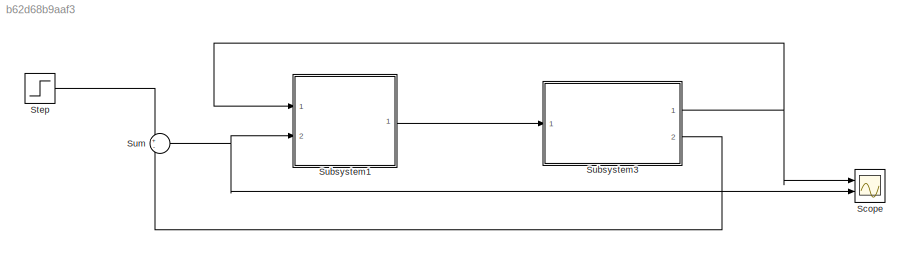
MODEL slx_b62d68b9aaf3
KIND model
CONFIG AbsTol = auto
CONFIG EnableMultiTasking = off
CONFIG FixedStep = 0.0001
CONFIG MaxStep = auto
CONFIG MinStep = auto
CONFIG RelTol = 1e-3
CONFIG SampleTimeConstraint = Unconstrained
CONFIG Solver = FixedStepAuto
CONFIG SolverName = FixedStepAuto
CONFIG StartTime = 0.0
CONFIG StopTime = 10
BLOCK [Scope] Scope
  Floating = off
  NumInputPorts = 2
  Ports = [2]
  ScopeSpecificationString = Simulink.scopes.TimeScopeBlockCfg('CurrentConfiguration', extmgr.ConfigurationSet(extmgr.Configuration('Core','General UI',true),extmgr.Configuration('Core','Source UI',true),extmgr.Configuration('Sources','WiredSimulink',true),extmgr.Configuration('Visuals','Time Domain',true,'SerializedDisplays',{struct('MinYLimReal','-0.125','MaxYLimReal','1.125','YLabelReal','','MinYLimMag','0.00000','MaxYLimM...<+1396ch>
BLOCK [Step] Step
  SampleTime = 0
  Time = 0.5
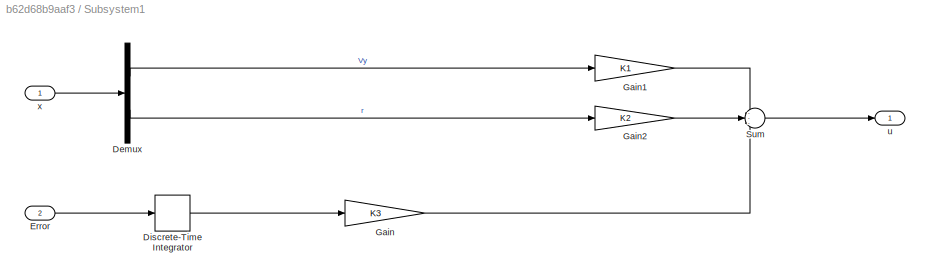
BLOCK [SubSystem] Subsystem1
  Ports = [2, 1]
  RequestExecContextInheritance = off
BLOCK [Demux] Subsystem1/Demux
  DisplayOption = bar
  Outputs = 2
  Ports = [1, 2]
BLOCK [DiscreteIntegrator] Subsystem1/Discrete-Time Integrator
  ICPrevOutput = DiscIntNeverNeededParam
  ICPrevScaledInput = DiscIntNeverNeededParam
  InitialConditionSetting = State (most efficient)
  Ports = [1, 1]
  SampleTime = 0.001
BLOCK [Inport] Subsystem1/Error
  IconDisplay = Port number
  Port = 2
BLOCK [Gain] Subsystem1/Gain
  Gain = K3
  OutDataTypeStr = Inherit: Inherit via internal rule
  ParamDataTypeStr = Inherit: Inherit via internal rule
  SaturateOnIntegerOverflow = off
BLOCK [Gain] Subsystem1/Gain1
  Gain = K1
  OutDataTypeStr = Inherit: Inherit via internal rule
  ParamDataTypeStr = Inherit: Inherit via internal rule
  SaturateOnIntegerOverflow = off
BLOCK [Gain] Subsystem1/Gain2
  Gain = K2
  OutDataTypeStr = Inherit: Inherit via internal rule
  ParamDataTypeStr = Inherit: Inherit via internal rule
  SaturateOnIntegerOverflow = off
BLOCK [Sum] Subsystem1/Sum
  IconShape = round
  InputSameDT = off
  Inputs = ---
  OutDataTypeStr = Inherit: Inherit via internal rule
  Ports = [3, 1]
  SaturateOnIntegerOverflow = off
BLOCK [Outport] Subsystem1/u
  IconDisplay = Port number
BLOCK [Inport] Subsystem1/x
  IconDisplay = Port number
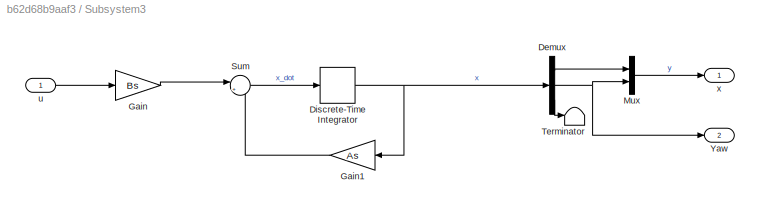
BLOCK [SubSystem] Subsystem3
  Ports = [1, 2]
  RequestExecContextInheritance = off
BLOCK [Demux] Subsystem3/Demux
  DisplayOption = bar
  Outputs = 3
  Ports = [1, 3]
BLOCK [DiscreteIntegrator] Subsystem3/Discrete-Time Integrator
  ICPrevOutput = DiscIntNeverNeededParam
  ICPrevScaledInput = DiscIntNeverNeededParam
  InitialConditionSetting = State (most efficient)
  Ports = [1, 1]
  SampleTime = 0.0001
BLOCK [Gain] Subsystem3/Gain
  Gain = Bs
  Multiplication = Matrix(K*u)
  OutDataTypeStr = Inherit: Inherit via internal rule
  ParamDataTypeStr = Inherit: Inherit via internal rule
  SaturateOnIntegerOverflow = off
BLOCK [Gain] Subsystem3/Gain1
  Gain = As
  Multiplication = Matrix(K*u)
  OutDataTypeStr = Inherit: Inherit via internal rule
  ParamDataTypeStr = Inherit: Inherit via internal rule
  SaturateOnIntegerOverflow = off
BLOCK [Mux] Subsystem3/Mux
  DisplayOption = bar
  Inputs = 2
  Ports = [2, 1]
BLOCK [Sum] Subsystem3/Sum
  IconShape = round
  InputSameDT = off
  Inputs = |++
  OutDataTypeStr = Inherit: Inherit via internal rule
  Ports = [2, 1]
  SaturateOnIntegerOverflow = off
BLOCK [Terminator] Subsystem3/Terminator
BLOCK [Outport] Subsystem3/Yaw
  IconDisplay = Port number
  Port = 2
BLOCK [Inport] Subsystem3/u
  IconDisplay = Port number
BLOCK [Outport] Subsystem3/x
  IconDisplay = Port number
BLOCK [Sum] Sum
  IconShape = round
  InputSameDT = off
  Inputs = +-
  OutDataTypeStr = Inherit: Inherit via internal rule
  Ports = [2, 1]
  SaturateOnIntegerOverflow = off
LINE Step:1 -> Sum:1
LINE Subsystem1/Demux:1 -> Subsystem1/Gain1:1
LINE Subsystem1/Demux:2 -> Subsystem1/Gain2:1
LINE Subsystem1/Discrete-Time Integrator:1 -> Subsystem1/Gain:1
LINE Subsystem1/Error:1 -> Subsystem1/Discrete-Time Integrator:1
LINE Subsystem1/Gain1:1 -> Subsystem1/Sum:1
LINE Subsystem1/Gain2:1 -> Subsystem1/Sum:2
LINE Subsystem1/Gain:1 -> Subsystem1/Sum:3
LINE Subsystem1/Sum:1 -> Subsystem1/u:1
LINE Subsystem1/x:1 -> Subsystem1/Demux:1
LINE Subsystem1:1 -> Subsystem3:1
LINE Subsystem3/Demux:1 -> Subsystem3/Mux:1
NET Subsystem3/Demux:2 -> Subsystem3/Mux:2, Subsystem3/Yaw:1
LINE Subsystem3/Demux:3 -> Subsystem3/Terminator:1
NET Subsystem3/Discrete-Time Integrator:1 -> Subsystem3/Demux:1, Subsystem3/Gain1:1
LINE Subsystem3/Gain1:1 -> Subsystem3/Sum:2
LINE Subsystem3/Gain:1 -> Subsystem3/Sum:1
LINE Subsystem3/Mux:1 -> Subsystem3/x:1
LINE Subsystem3/Sum:1 -> Subsystem3/Discrete-Time Integrator:1
LINE Subsystem3/u:1 -> Subsystem3/Gain:1
NET Subsystem3:1 -> Scope:1, Subsystem1:1
LINE Subsystem3:2 -> Sum:2
NET Sum:1 -> Scope:2, Subsystem1:2
note: NET lines group one-source signal fan-out (src -> all destinations, sorted); 1:1 wires keep LINE
